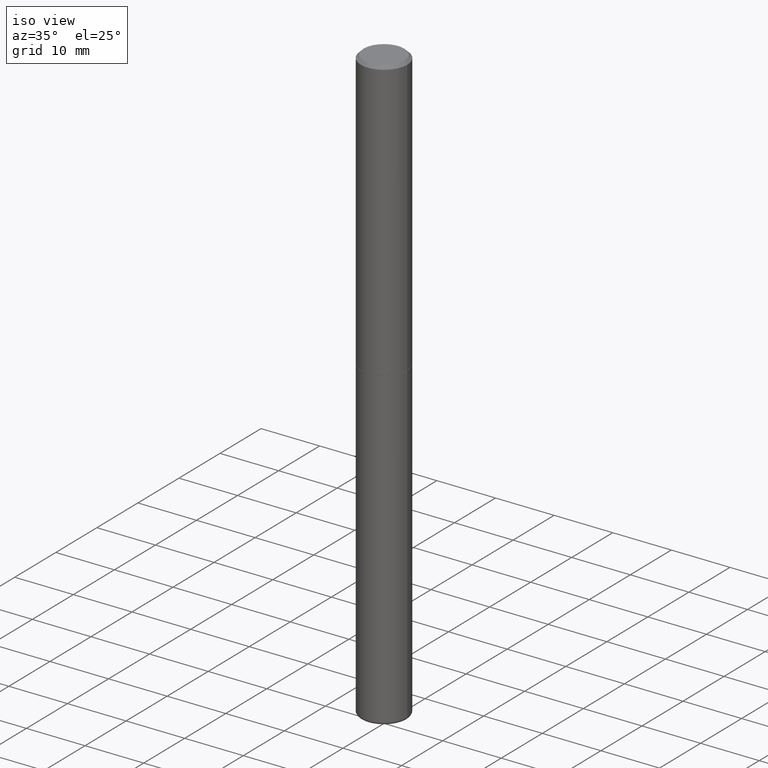
[diagram: clean part render]
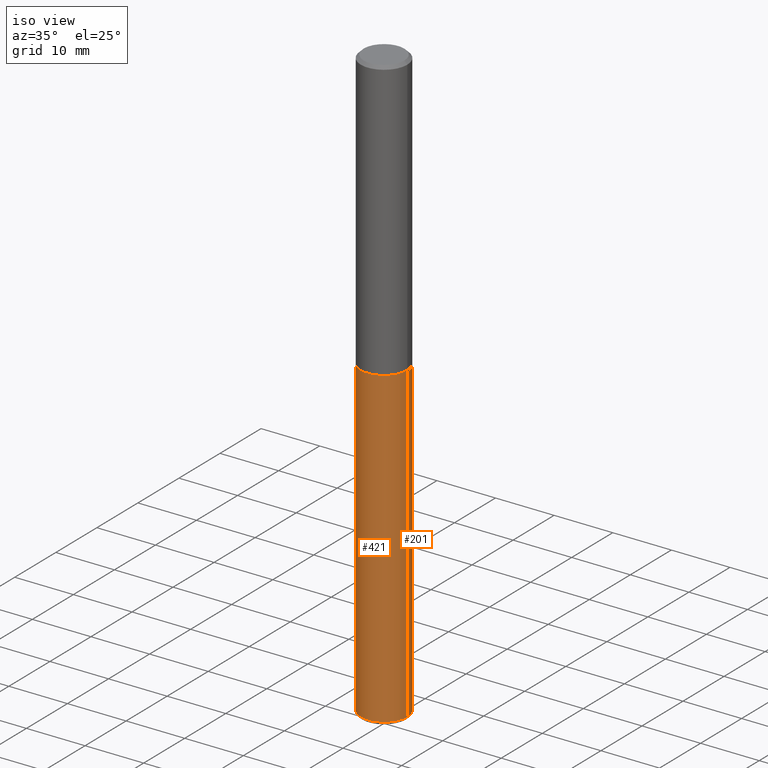
[diagram: same view with one multi-face feature highlighted, each face labeled with its STEP entity id]
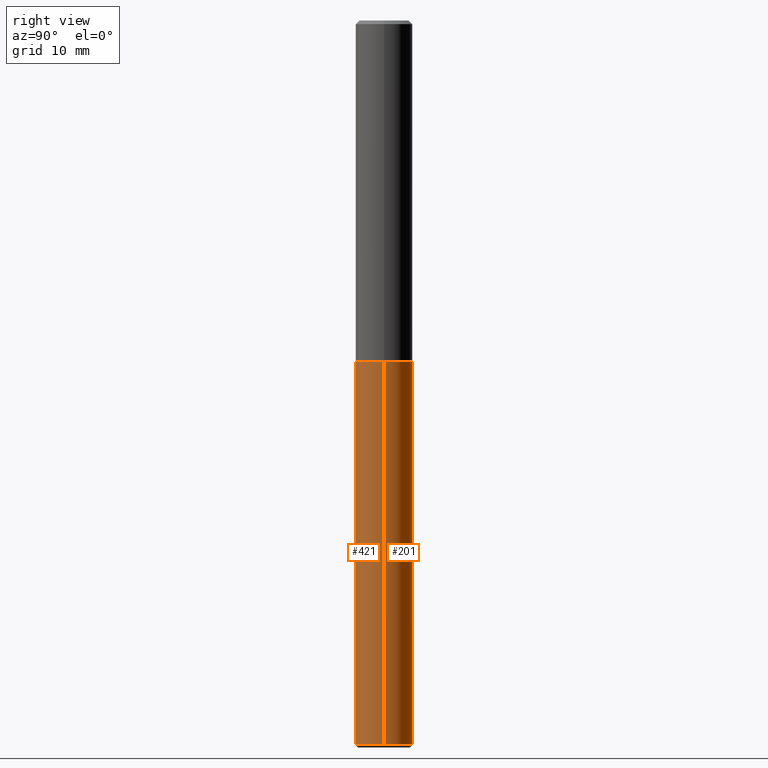
[diagram: same view with one multi-face feature highlighted, each face labeled with its STEP entity id]
A machine part, iso view. The highlighted faces form ONE feature: a constant-radius fillet chain: 2 tangent blend faces with common blend radius 3.9688 mm. The faces share edges in the B-rep.
A second angle (right view) of the same feature is appended — it is thin or edge-on in the first view.
Their STEP definitions:
[1] entity #201 (Cylinder):
#1 = ORIENTED_EDGE ( 'NONE', *, *, #339, .T. ) ;
#32 = CIRCLE ( 'NONE', #483, 0.1562500000000000000 ) ;
#45 = VERTEX_POINT ( 'NONE', #120 ) ;
#57 = FACE_OUTER_BOUND ( 'NONE', #70, .T. ) ;
#58 = DIRECTION ( 'NONE',  ( 1.000000000000000000, -6.982962677686269077E-15, 0.000000000000000000 ) ) ;
#64 = EDGE_CURVE ( 'NONE', #230, #450, #205, .T. ) ;
#70 = EDGE_LOOP ( 'NONE', ( #1, #112, #96, #344 ) ) ;
#72 = CARTESIAN_POINT ( 'NONE',  ( 9.732967710936019417E-29, -1.389609838749393704E-14, -3.980000761538716514 ) ) ;
#88 = VECTOR ( 'NONE', #130, 39.37007874015748143 ) ;
#92 = DIRECTION ( 'NONE',  ( -2.445468806185136597E-29, 3.491481338843145583E-15, 1.000000000000000000 ) ) ;
#96 = ORIENTED_EDGE ( 'NONE', *, *, #64, .F. ) ;
#103 = LINE ( 'NONE', #470, #88 ) ;
#112 = ORIENTED_EDGE ( 'NONE', *, *, #287, .T. ) ;
#120 = CARTESIAN_POINT ( 'NONE',  ( 0.1562500000000000000, -1.498718630588241542E-14, -3.980000761538716514 ) ) ;
#130 = DIRECTION ( 'NONE',  ( -2.445468806185136877E-29, 3.491481338843145188E-15, 1.000000000000000000 ) ) ;
#145 = LINE ( 'NONE', #263, #177 ) ;
#147 = DIRECTION ( 'NONE',  ( -2.445468806185136597E-29, 3.491481338843145583E-15, 1.000000000000000000 ) ) ;
#177 = VECTOR ( 'NONE', #410, 39.37007874015748143 ) ;
#194 = CARTESIAN_POINT ( 'NONE',  ( 0.1562500000000000000, -7.637615428719378669E-15, -1.875000000000000444 ) ) ;
#201 = ADVANCED_FACE ( 'NONE', ( #57 ), #403, .T. ) ;
#205 = CIRCLE ( 'NONE', #476, 0.1562500000000000000 ) ;
#230 = VERTEX_POINT ( 'NONE', #194 ) ;
#251 = CARTESIAN_POINT ( 'NONE',  ( 0.000000000000000000, 0.000000000000000000, 0.000000000000000000 ) ) ;
#263 = CARTESIAN_POINT ( 'NONE',  ( -0.1562500000000000000, 1.110223024625156540E-15, -7.685836078523291160E-30 ) ) ;
#275 = VERTEX_POINT ( 'NONE', #490 ) ;
#283 = DIRECTION ( 'NONE',  ( 1.000000000000000000, -6.982962677686266711E-15, 4.876176775795936353E-29 ) ) ;
#287 = EDGE_CURVE ( 'NONE', #275, #450, #145, .T. ) ;
#320 = AXIS2_PLACEMENT_3D ( 'NONE', #251, #472, #283 ) ;
#324 = CARTESIAN_POINT ( 'NONE',  ( 4.585254011597131679E-29, -6.546527510330899496E-15, -1.875000000000000444 ) ) ;
#328 = EDGE_CURVE ( 'NONE', #45, #230, #103, .T. ) ;
#339 = EDGE_CURVE ( 'NONE', #45, #275, #32, .T. ) ;
#344 = ORIENTED_EDGE ( 'NONE', *, *, #328, .F. ) ;
#353 = DIRECTION ( 'NONE',  ( 1.000000000000000000, -6.982962677686262766E-15, 0.000000000000000000 ) ) ;
#369 = CARTESIAN_POINT ( 'NONE',  ( -0.1562500000000000000, -9.111089924287261332E-15, -1.875000000000000444 ) ) ;
#403 = CYLINDRICAL_SURFACE ( 'NONE', #320, 0.1562500000000000000 ) ;
#410 = DIRECTION ( 'NONE',  ( -2.445468806185136877E-29, 3.491481338843145188E-15, 1.000000000000000000 ) ) ;
#450 = VERTEX_POINT ( 'NONE', #369 ) ;
#470 = CARTESIAN_POINT ( 'NONE',  ( 0.1562500000000000000, -1.091087918388479174E-15, 7.619026212181150377E-30 ) ) ;
#472 = DIRECTION ( 'NONE',  ( -2.445468806185136597E-29, 3.491481338843145583E-15, 1.000000000000000000 ) ) ;
#476 = AXIS2_PLACEMENT_3D ( 'NONE', #324, #92, #58 ) ;
#483 = AXIS2_PLACEMENT_3D ( 'NONE', #72, #147, #353 ) ;
#490 = CARTESIAN_POINT ( 'NONE',  ( -0.1562500000000000000, -9.111089924287261332E-15, -3.980000761538716514 ) ) ;
[2] entity #421 (Cylinder):
#22 = EDGE_CURVE ( 'NONE', #275, #45, #401, .T. ) ;
#38 = ORIENTED_EDGE ( 'NONE', *, *, #328, .T. ) ;
#45 = VERTEX_POINT ( 'NONE', #120 ) ;
#69 = CIRCLE ( 'NONE', #210, 0.1562500000000000000 ) ;
#88 = VECTOR ( 'NONE', #130, 39.37007874015748143 ) ;
#94 = FACE_OUTER_BOUND ( 'NONE', #151, .T. ) ;
#103 = LINE ( 'NONE', #470, #88 ) ;
#117 = DIRECTION ( 'NONE',  ( 1.000000000000000000, -6.982962677686269077E-15, 0.000000000000000000 ) ) ;
#119 = AXIS2_PLACEMENT_3D ( 'NONE', #405, #479, #357 ) ;
#120 = CARTESIAN_POINT ( 'NONE',  ( 0.1562500000000000000, -1.498718630588241542E-14, -3.980000761538716514 ) ) ;
#130 = DIRECTION ( 'NONE',  ( -2.445468806185136877E-29, 3.491481338843145188E-15, 1.000000000000000000 ) ) ;
#145 = LINE ( 'NONE', #263, #177 ) ;
#151 = EDGE_LOOP ( 'NONE', ( #241, #157, #38, #239 ) ) ;
#157 = ORIENTED_EDGE ( 'NONE', *, *, #22, .T. ) ;
#177 = VECTOR ( 'NONE', #410, 39.37007874015748143 ) ;
#194 = CARTESIAN_POINT ( 'NONE',  ( 0.1562500000000000000, -7.637615428719378669E-15, -1.875000000000000444 ) ) ;
#207 = DIRECTION ( 'NONE',  ( 1.000000000000000000, -6.982962677686262766E-15, 0.000000000000000000 ) ) ;
#210 = AXIS2_PLACEMENT_3D ( 'NONE', #301, #445, #117 ) ;
#230 = VERTEX_POINT ( 'NONE', #194 ) ;
#239 = ORIENTED_EDGE ( 'NONE', *, *, #248, .F. ) ;
#241 = ORIENTED_EDGE ( 'NONE', *, *, #287, .F. ) ;
#248 = EDGE_CURVE ( 'NONE', #450, #230, #69, .T. ) ;
#263 = CARTESIAN_POINT ( 'NONE',  ( -0.1562500000000000000, 1.110223024625156540E-15, -7.685836078523291160E-30 ) ) ;
#275 = VERTEX_POINT ( 'NONE', #490 ) ;
#287 = EDGE_CURVE ( 'NONE', #275, #450, #145, .T. ) ;
#291 = AXIS2_PLACEMENT_3D ( 'NONE', #314, #425, #207 ) ;
#301 = CARTESIAN_POINT ( 'NONE',  ( 4.585254011597131679E-29, -6.546527510330899496E-15, -1.875000000000000444 ) ) ;
#313 = CYLINDRICAL_SURFACE ( 'NONE', #119, 0.1562500000000000000 ) ;
#314 = CARTESIAN_POINT ( 'NONE',  ( 9.732967710936019417E-29, -1.389609838749393704E-14, -3.980000761538716514 ) ) ;
#328 = EDGE_CURVE ( 'NONE', #45, #230, #103, .T. ) ;
#357 = DIRECTION ( 'NONE',  ( 1.000000000000000000, -6.982962677686266711E-15, 4.876176775795936353E-29 ) ) ;
#369 = CARTESIAN_POINT ( 'NONE',  ( -0.1562500000000000000, -9.111089924287261332E-15, -1.875000000000000444 ) ) ;
#401 = CIRCLE ( 'NONE', #291, 0.1562500000000000000 ) ;
#405 = CARTESIAN_POINT ( 'NONE',  ( 0.000000000000000000, 0.000000000000000000, 0.000000000000000000 ) ) ;
#410 = DIRECTION ( 'NONE',  ( -2.445468806185136877E-29, 3.491481338843145188E-15, 1.000000000000000000 ) ) ;
#421 = ADVANCED_FACE ( 'NONE', ( #94 ), #313, .T. ) ;
#425 = DIRECTION ( 'NONE',  ( -2.445468806185136597E-29, 3.491481338843145583E-15, 1.000000000000000000 ) ) ;
#445 = DIRECTION ( 'NONE',  ( -2.445468806185136597E-29, 3.491481338843145583E-15, 1.000000000000000000 ) ) ;
#450 = VERTEX_POINT ( 'NONE', #369 ) ;
#470 = CARTESIAN_POINT ( 'NONE',  ( 0.1562500000000000000, -1.091087918388479174E-15, 7.619026212181150377E-30 ) ) ;
#479 = DIRECTION ( 'NONE',  ( -2.445468806185136597E-29, 3.491481338843145583E-15, 1.000000000000000000 ) ) ;
#490 = CARTESIAN_POINT ( 'NONE',  ( -0.1562500000000000000, -9.111089924287261332E-15, -3.980000761538716514 ) ) ;